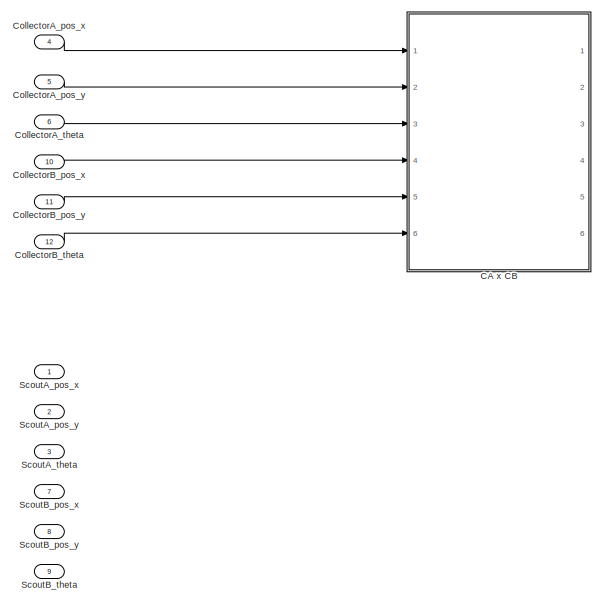
[diagram: root canvas - part 1/2, left side, full height]
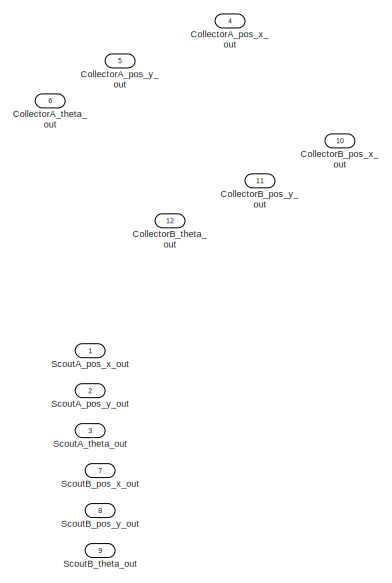
[diagram: root canvas - part 2/2, right side, full height]
MODEL slx_9f7b5093f0cf
KIND model
CONFIG AbsTol = auto
CONFIG EnableMultiTasking = off
CONFIG FixedStep = 0.01
CONFIG MaxStep = .01
CONFIG MinStep = auto
CONFIG RelTol = 1e-3
CONFIG SampleTimeConstraint = Unconstrained
CONFIG Solver = VariableStepAuto
CONFIG SolverName = VariableStepAuto
CONFIG StartTime = 0.0
CONFIG StopTime = 120
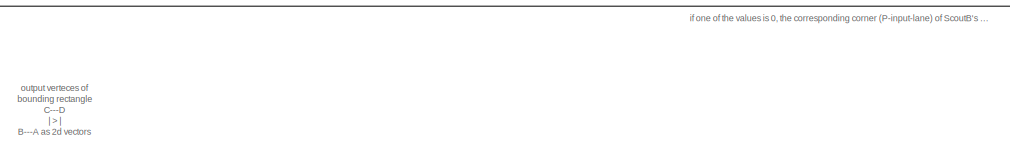
[diagram: CA x CB - part 1/3, top center region]
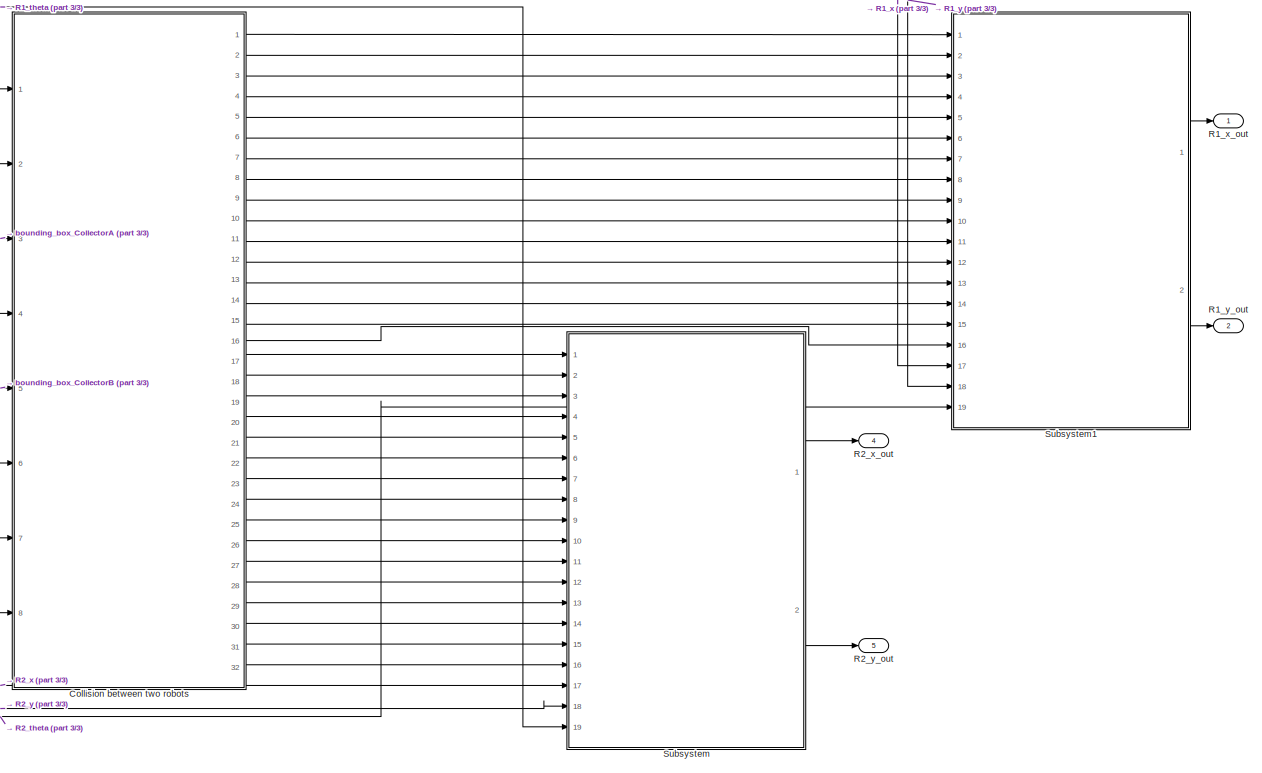
[diagram: CA x CB - part 2/3, right side, full height]
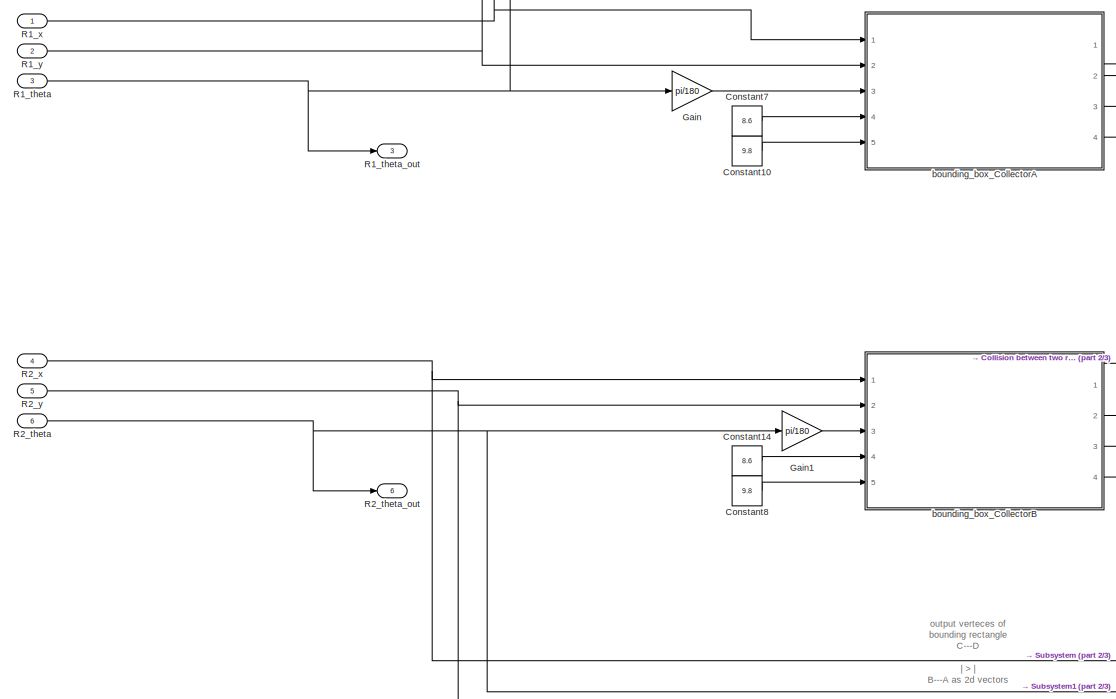
[diagram: CA x CB - part 3/3, middle left region]
BLOCK [SubSystem] CA x CB
  Ports = [6, 6]
  RequestExecContextInheritance = off
BLOCK [ModelReference] CA x CB/Collision between two robots
  ModelNameDialog = collision_between_two_robots
  ModelReferenceVersion = 1.665
  Ports = [8, 32]
BLOCK [Constant] CA x CB/Constant10
  Value = 9.8
BLOCK [Constant] CA x CB/Constant14
  Value = 8.6
BLOCK [Constant] CA x CB/Constant7
  Value = 8.6
BLOCK [Constant] CA x CB/Constant8
  Value = 9.8
BLOCK [Gain] CA x CB/Gain
  Gain = pi/180
  OutDataTypeStr = Inherit: Inherit via internal rule
  ParamDataTypeStr = Inherit: Inherit via internal rule
  SaturateOnIntegerOverflow = off
BLOCK [Gain] CA x CB/Gain1
  Gain = pi/180
  OutDataTypeStr = Inherit: Inherit via internal rule
  ParamDataTypeStr = Inherit: Inherit via internal rule
  SaturateOnIntegerOverflow = off
BLOCK [Inport] CA x CB/R1_theta
  IconDisplay = Port number
  Port = 3
BLOCK [Outport] CA x CB/R1_theta_out
  IconDisplay = Port number
  Port = 3
BLOCK [Inport] CA x CB/R1_x
  IconDisplay = Port number
BLOCK [Outport] CA x CB/R1_x_out
  IconDisplay = Port number
BLOCK [Inport] CA x CB/R1_y
  IconDisplay = Port number
  Port = 2
BLOCK [Outport] CA x CB/R1_y_out
  IconDisplay = Port number
  Port = 2
BLOCK [Inport] CA x CB/R2_theta
  IconDisplay = Port number
  Port = 6
BLOCK [Outport] CA x CB/R2_theta_out
  IconDisplay = Port number
  Port = 6
BLOCK [Inport] CA x CB/R2_x
  IconDisplay = Port number
  Port = 4
BLOCK [Outport] CA x CB/R2_x_out
  IconDisplay = Port number
  Port = 4
BLOCK [Inport] CA x CB/R2_y
  IconDisplay = Port number
  Port = 5
BLOCK [Outport] CA x CB/R2_y_out
  IconDisplay = Port number
  Port = 5
BLOCK [ModelReference] CA x CB/Subsystem
  ModelNameDialog = calculate_collision_effects
  ModelReferenceVersion = 1.719
  Ports = [19, 2]
BLOCK [ModelReference] CA x CB/Subsystem1
  ModelNameDialog = calculate_collision_effects
  ModelReferenceVersion = 1.719
  Ports = [19, 2]
BLOCK [ModelReference] CA x CB/bounding_box_CollectorA
  ModelNameDialog = bounding_box_calc
  ModelReferenceVersion = 1.661
  Ports = [5, 4]
BLOCK [ModelReference] CA x CB/bounding_box_CollectorB
  ModelNameDialog = bounding_box_calc
  ModelReferenceVersion = 1.661
  Ports = [5, 4]
BLOCK [Inport] CollectorA_pos_x
  IconDisplay = Port number
  OutDataTypeStr = double
  Port = 4
  PortDimensions = 1
  SampleTime = 0
  SamplingMode = Sample based
  SignalType = real
BLOCK [Outport] CollectorA_pos_x_out
  IconDisplay = Port number
  Port = 4
BLOCK [Inport] CollectorA_pos_y
  IconDisplay = Port number
  OutDataTypeStr = double
  Port = 5
  PortDimensions = 1
  SampleTime = 0
  SamplingMode = Sample based
  SignalType = real
BLOCK [Outport] CollectorA_pos_y_out
  IconDisplay = Port number
  Port = 5
BLOCK [Inport] CollectorA_theta
  IconDisplay = Port number
  OutDataTypeStr = double
  Port = 6
  PortDimensions = 1
  SampleTime = 0
  SamplingMode = Sample based
  SignalType = real
BLOCK [Outport] CollectorA_theta_out
  IconDisplay = Port number
  Port = 6
BLOCK [Inport] CollectorB_pos_x
  IconDisplay = Port number
  OutDataTypeStr = double
  Port = 10
  PortDimensions = 1
  SampleTime = 0
  SamplingMode = Sample based
  SignalType = real
BLOCK [Outport] CollectorB_pos_x_out
  IconDisplay = Port number
  Port = 10
BLOCK [Inport] CollectorB_pos_y
  IconDisplay = Port number
  OutDataTypeStr = double
  Port = 11
  PortDimensions = 1
  SampleTime = 0
  SamplingMode = Sample based
  SignalType = real
BLOCK [Outport] CollectorB_pos_y_out
  IconDisplay = Port number
  Port = 11
BLOCK [Inport] CollectorB_theta
  IconDisplay = Port number
  OutDataTypeStr = double
  Port = 12
  PortDimensions = 1
  SampleTime = 0
  SamplingMode = Sample based
  SignalType = real
BLOCK [Outport] CollectorB_theta_out
  IconDisplay = Port number
  Port = 12
BLOCK [Inport] ScoutA_pos_x
  IconDisplay = Port number
  OutDataTypeStr = double
  PortDimensions = 1
  SampleTime = 0
  SamplingMode = Sample based
  SignalType = real
BLOCK [Outport] ScoutA_pos_x_out
  IconDisplay = Port number
BLOCK [Inport] ScoutA_pos_y
  IconDisplay = Port number
  OutDataTypeStr = double
  Port = 2
  PortDimensions = 1
  SampleTime = 0
  SamplingMode = Sample based
  SignalType = real
BLOCK [Outport] ScoutA_pos_y_out
  IconDisplay = Port number
  Port = 2
BLOCK [Inport] ScoutA_theta
  IconDisplay = Port number
  OutDataTypeStr = double
  Port = 3
  PortDimensions = 1
  SampleTime = 0
  SamplingMode = Sample based
  SignalType = real
BLOCK [Outport] ScoutA_theta_out
  IconDisplay = Port number
  Port = 3
BLOCK [Inport] ScoutB_pos_x
  IconDisplay = Port number
  OutDataTypeStr = double
  Port = 7
  PortDimensions = 1
  SampleTime = 0
  SamplingMode = Sample based
  SignalType = real
BLOCK [Outport] ScoutB_pos_x_out
  IconDisplay = Port number
  Port = 7
BLOCK [Inport] ScoutB_pos_y
  IconDisplay = Port number
  OutDataTypeStr = double
  Port = 8
  PortDimensions = 1
  SampleTime = 0
  SamplingMode = Sample based
  SignalType = real
BLOCK [Outport] ScoutB_pos_y_out
  IconDisplay = Port number
  Port = 8
BLOCK [Inport] ScoutB_theta
  IconDisplay = Port number
  OutDataTypeStr = double
  Port = 9
  PortDimensions = 1
  SampleTime = 0
  SamplingMode = Sample based
  SignalType = real
BLOCK [Outport] ScoutB_theta_out
  IconDisplay = Port number
  Port = 9
ANNOTATION CA x CB: if one of the values is 0, the corresponding corner (P-input-lane) of ScoutB's BB collides with ScoutA's BB (at the corresponding edge, e.g. AB).
ANNOTATION CA x CB: output verteces of bounding rectangle C---D | > | B---A as 2d vectors
LINE CA x CB/Collision between two robots:1 -> CA x CB/Subsystem1:1
LINE CA x CB/Collision between two robots:10 -> CA x CB/Subsystem1:10
LINE CA x CB/Collision between two robots:11 -> CA x CB/Subsystem1:11
LINE CA x CB/Collision between two robots:12 -> CA x CB/Subsystem1:12
LINE CA x CB/Collision between two robots:13 -> CA x CB/Subsystem1:13
LINE CA x CB/Collision between two robots:14 -> CA x CB/Subsystem1:14
LINE CA x CB/Collision between two robots:15 -> CA x CB/Subsystem1:15
LINE CA x CB/Collision between two robots:16 -> CA x CB/Subsystem1:16
LINE CA x CB/Collision between two robots:17 -> CA x CB/Subsystem:1
LINE CA x CB/Collision between two robots:18 -> CA x CB/Subsystem:2
LINE CA x CB/Collision between two robots:19 -> CA x CB/Subsystem:3
LINE CA x CB/Collision between two robots:2 -> CA x CB/Subsystem1:2
LINE CA x CB/Collision between two robots:20 -> CA x CB/Subsystem:4
LINE CA x CB/Collision between two robots:21 -> CA x CB/Subsystem:5
LINE CA x CB/Collision between two robots:22 -> CA x CB/Subsystem:6
LINE CA x CB/Collision between two robots:23 -> CA x CB/Subsystem:7
LINE CA x CB/Collision between two robots:24 -> CA x CB/Subsystem:8
LINE CA x CB/Collision between two robots:25 -> CA x CB/Subsystem:9
LINE CA x CB/Collision between two robots:26 -> CA x CB/Subsystem:10
LINE CA x CB/Collision between two robots:27 -> CA x CB/Subsystem:11
LINE CA x CB/Collision between two robots:28 -> CA x CB/Subsystem:12
LINE CA x CB/Collision between two robots:29 -> CA x CB/Subsystem:13
LINE CA x CB/Collision between two robots:3 -> CA x CB/Subsystem1:3
LINE CA x CB/Collision between two robots:30 -> CA x CB/Subsystem:14
LINE CA x CB/Collision between two robots:31 -> CA x CB/Subsystem:15
LINE CA x CB/Collision between two robots:32 -> CA x CB/Subsystem:16
LINE CA x CB/Collision between two robots:4 -> CA x CB/Subsystem1:4
LINE CA x CB/Collision between two robots:5 -> CA x CB/Subsystem1:5
LINE CA x CB/Collision between two robots:6 -> CA x CB/Subsystem1:6
LINE CA x CB/Collision between two robots:7 -> CA x CB/Subsystem1:7
LINE CA x CB/Collision between two robots:8 -> CA x CB/Subsystem1:8
LINE CA x CB/Collision between two robots:9 -> CA x CB/Subsystem1:9
LINE CA x CB/Constant10:1 -> CA x CB/bounding_box_CollectorA:5
LINE CA x CB/Constant14:1 -> CA x CB/bounding_box_CollectorB:4
LINE CA x CB/Constant7:1 -> CA x CB/bounding_box_CollectorA:4
LINE CA x CB/Constant8:1 -> CA x CB/bounding_box_CollectorB:5
LINE CA x CB/Gain1:1 -> CA x CB/bounding_box_CollectorB:3
LINE CA x CB/Gain:1 -> CA x CB/bounding_box_CollectorA:3
NET CA x CB/R1_theta:1 -> CA x CB/Gain:1, CA x CB/R1_theta_out:1, CA x CB/Subsystem:19
NET CA x CB/R1_x:1 -> CA x CB/Subsystem1:17, CA x CB/bounding_box_CollectorA:1
NET CA x CB/R1_y:1 -> CA x CB/Subsystem1:18, CA x CB/bounding_box_CollectorA:2
NET CA x CB/R2_theta:1 -> CA x CB/Gain1:1, CA x CB/R2_theta_out:1, CA x CB/Subsystem1:19
NET CA x CB/R2_x:1 -> CA x CB/Subsystem:17, CA x CB/bounding_box_CollectorB:1
NET CA x CB/R2_y:1 -> CA x CB/Subsystem:18, CA x CB/bounding_box_CollectorB:2
LINE CA x CB/Subsystem1:1 -> CA x CB/R1_x_out:1
LINE CA x CB/Subsystem1:2 -> CA x CB/R1_y_out:1
LINE CA x CB/Subsystem:1 -> CA x CB/R2_x_out:1
LINE CA x CB/Subsystem:2 -> CA x CB/R2_y_out:1
LINE CA x CB/bounding_box_CollectorA:1 -> CA x CB/Collision between two robots:1
LINE CA x CB/bounding_box_CollectorA:2 -> CA x CB/Collision between two robots:2
LINE CA x CB/bounding_box_CollectorA:3 -> CA x CB/Collision between two robots:3
LINE CA x CB/bounding_box_CollectorA:4 -> CA x CB/Collision between two robots:4
LINE CA x CB/bounding_box_CollectorB:1 -> CA x CB/Collision between two robots:5
LINE CA x CB/bounding_box_CollectorB:2 -> CA x CB/Collision between two robots:6
LINE CA x CB/bounding_box_CollectorB:3 -> CA x CB/Collision between two robots:7
LINE CA x CB/bounding_box_CollectorB:4 -> CA x CB/Collision between two robots:8
LINE CollectorA_pos_x:1 -> CA x CB:1
LINE CollectorA_pos_y:1 -> CA x CB:2
LINE CollectorA_theta:1 -> CA x CB:3
LINE CollectorB_pos_x:1 -> CA x CB:4
LINE CollectorB_pos_y:1 -> CA x CB:5
LINE CollectorB_theta:1 -> CA x CB:6
note: NET lines group one-source signal fan-out (src -> all destinations, sorted); 1:1 wires keep LINE
